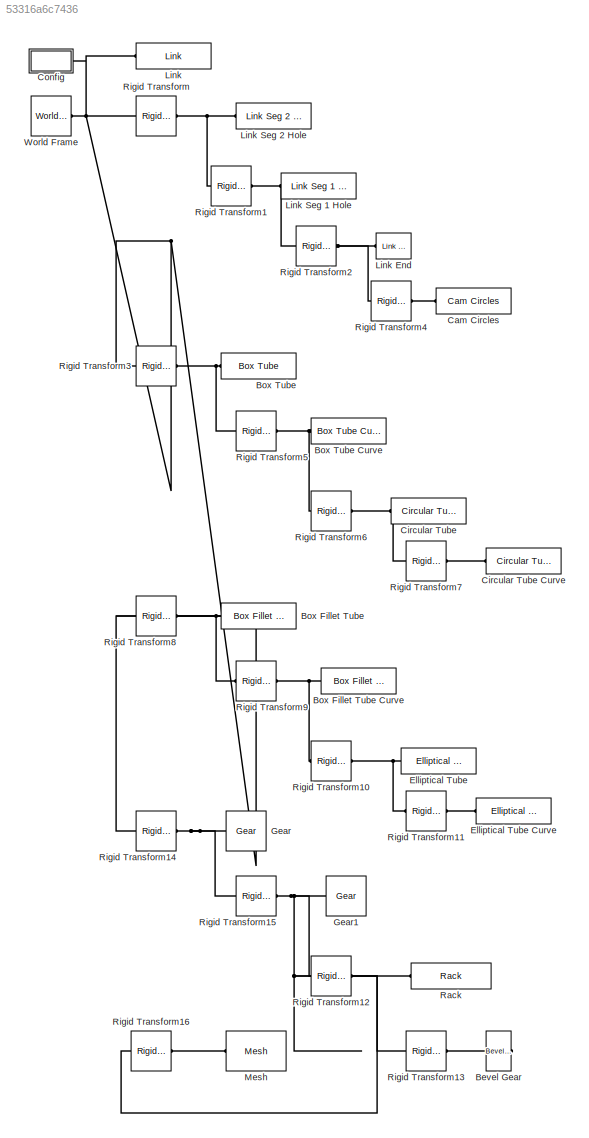
MODEL slx_53316a6c7436
KIND model
CONFIG AbsTol = auto
CONFIG EnableMultiTasking = on
CONFIG FixedStep = auto
CONFIG MaxStep = auto
CONFIG MinStep = auto
CONFIG RelTol = 1e-3
CONFIG SampleTimeConstraint = Unconstrained
CONFIG Solver = VariableStepAuto
CONFIG SolverName = VariableStepAuto
CONFIG StartTime = 0.0
CONFIG StopTime = 10.0
BLOCK [Reference] Bevel Gear  REF=Multibody_Parts_Lib/Gears/Bevel Gear
  Ports = [0, 0, 0, 0, 0, 0, 1]
  SourceBlock = Multibody_Parts_Lib/Gears/Bevel Gear
  SourceProductName = Simscape Multibody Parts Library
  SourceType = Bevel Gear
BLOCK [Reference] Box Fillet Tube  REF=Multibody_Parts_Lib/Extrusions/Box Fillet Tube
  Ports = [0, 0, 0, 0, 0, 1, 1]
  SourceBlock = Multibody_Parts_Lib/Extrusions/Box Fillet Tube
  SourceProductName = Simscape Multibody Parts Library
  SourceType = Box Tube with Filleted Corners
BLOCK [Reference] Box Fillet Tube Curve  REF=Multibody_Parts_Lib/Extrusions/Box Fillet Tube Curve
  Ports = [0, 0, 0, 0, 0, 1, 1]
  SourceBlock = Multibody_Parts_Lib/Extrusions/Box Fillet Tube Curve
  SourceProductName = Simscape Multibody Parts Library
  SourceType = Box Tube with Curve
BLOCK [Reference] Box Tube  REF=Multibody_Parts_Lib/Extrusions/Box Tube
  Ports = [0, 0, 0, 0, 0, 1, 1]
  SourceBlock = Multibody_Parts_Lib/Extrusions/Box Tube
  SourceProductName = Simscape Multibody Parts Library
  SourceType = Box Tube
BLOCK [Reference] Box Tube Curve  REF=Multibody_Parts_Lib/Extrusions/Box Tube Curve
  Ports = [0, 0, 0, 0, 0, 1, 1]
  SourceBlock = Multibody_Parts_Lib/Extrusions/Box Tube Curve
  SourceProductName = Simscape Multibody Parts Library
  SourceType = Box Tube with Curve
BLOCK [Reference] Cam Circles  REF=Multibody_Parts_Lib/Linkages/Cam Circles
  Ports = [0, 0, 0, 0, 0, 1, 1]
  SourceBlock = Multibody_Parts_Lib/Linkages/Cam Circles
  SourceProductName = Simscape Multibody Parts Library
  SourceType = Cam from Two Circles
BLOCK [Reference] Circular Tube  REF=Multibody_Parts_Lib/Extrusions/Circular Tube
  Ports = [0, 0, 0, 0, 0, 1, 1]
  SourceBlock = Multibody_Parts_Lib/Extrusions/Circular Tube
  SourceProductName = Simscape Multibody Parts Library
  SourceType = Elliptical Tube
BLOCK [Reference] Circular Tube Curve  REF=Multibody_Parts_Lib/Extrusions/Circular Tube Curve
  Ports = [0, 0, 0, 0, 0, 1, 1]
  SourceBlock = Multibody_Parts_Lib/Extrusions/Circular Tube Curve
  SourceProductName = Simscape Multibody Parts Library
  SourceType = Curved Circular Tube
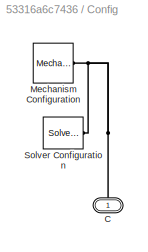
BLOCK [SubSystem] Config
  Ports = [0, 0, 0, 0, 0, 1]
  RequestExecContextInheritance = off
BLOCK [PMIOPort] Config/C
  Side = Left
BLOCK [Reference] Config/Mechanism Configuration  REF=sm_lib/Utilities/Mechanism
Configuration
  Ports = [0, 0, 0, 0, 0, 0, 1]
  SourceBlock = sm_lib/Utilities/Mechanism\nConfiguration
  SourceProductBaseCode = MS
  SourceProductName = Simscape Multibody
  SourceType = Mechanism\nConfiguration
BLOCK [Reference] Config/Solver Configuration  REF=nesl_utility/Solver
Configuration
  Ports = [0, 0, 0, 0, 0, 0, 1]
  SourceBlock = nesl_utility/Solver\nConfiguration
  SourceProductBaseCode = SS
  SourceProductName = Simscape
  SourceType = Solver\nConfiguration
BLOCK [Reference] Elliptical Tube  REF=Multibody_Parts_Lib/Extrusions/Elliptical Tube
  Ports = [0, 0, 0, 0, 0, 1, 1]
  SourceBlock = Multibody_Parts_Lib/Extrusions/Elliptical Tube
  SourceProductName = Simscape Multibody Parts Library
  SourceType = Elliptical Tube
BLOCK [Reference] Elliptical Tube Curve  REF=Multibody_Parts_Lib/Extrusions/Elliptical Tube Curve
  Ports = [0, 0, 0, 0, 0, 1, 1]
  SourceBlock = Multibody_Parts_Lib/Extrusions/Elliptical Tube Curve
  SourceProductName = Simscape Multibody Parts Library
  SourceType = Elliptical Tube
BLOCK [Reference] Gear  REF=Multibody_Parts_Lib/Gears/Gear
  Ports = [0, 0, 0, 0, 0, 0, 1]
  SourceBlock = Multibody_Parts_Lib/Gears/Gear
  SourceProductName = Simscape Multibody Parts Library
  SourceType = Gear
BLOCK [Reference] Gear1  REF=Multibody_Parts_Lib/Gears/Gear
  Ports = [0, 0, 0, 0, 0, 0, 1]
  SourceBlock = Multibody_Parts_Lib/Gears/Gear
  SourceProductName = Simscape Multibody Parts Library
  SourceType = Gear
BLOCK [Reference] Link  REF=Multibody_Parts_Lib/Linkages/Link
  Ports = [0, 0, 0, 0, 0, 1, 1]
  SourceBlock = Multibody_Parts_Lib/Linkages/Link
  SourceProductName = Simscape Multibody Parts Library
  SourceType = Link with Rounded Ends
BLOCK [Reference] Link End  REF=Multibody_Parts_Lib/Linkages/Link End
  Ports = [0, 0, 0, 0, 0, 1]
  SourceBlock = Multibody_Parts_Lib/Linkages/Link End
  SourceProductName = Simscape Multibody Parts Library
  SourceType = Link End
BLOCK [Reference] Link Seg 1 Hole  REF=Multibody_Parts_Lib/Linkages/Link Seg 1 Hole
  Ports = [0, 0, 0, 0, 0, 1, 1]
  SourceBlock = Multibody_Parts_Lib/Linkages/Link Seg 1 Hole
  SourceProductName = Simscape Multibody Parts Library
  SourceType = Link Segment with 1 Hole
BLOCK [Reference] Link Seg 2 Hole  REF=Multibody_Parts_Lib/Linkages/Link Seg 2 Hole
  Ports = [0, 0, 0, 0, 0, 1, 1]
  SourceBlock = Multibody_Parts_Lib/Linkages/Link Seg 2 Hole
  SourceProductName = Simscape Multibody Parts Library
  SourceType = Link Segment with 2 Holes
BLOCK [Reference] Mesh  REF=Multibody_Parts_Lib/Basic/Mesh
  Ports = [0, 0, 0, 0, 0, 1, 2]
  SourceBlock = Multibody_Parts_Lib/Basic/Mesh
  SourceProductName = Simscape Multibody Parts Library
  SourceType = Rectangular Mesh
BLOCK [Reference] Rack  REF=Multibody_Parts_Lib/Gears/Rack
  Ports = [0, 0, 0, 0, 0, 0, 1]
  SourceBlock = Multibody_Parts_Lib/Gears/Rack
  SourceProductName = Simscape Multibody Parts Library
  SourceType = Rack
BLOCK [Reference] Rigid Transform  REF=sm_lib/Frames and
Transforms/Rigid
Transform
  Ports = [0, 0, 0, 0, 0, 1, 1]
  SourceBlock = sm_lib/Frames and\nTransforms/Rigid\nTransform
  SourceProductBaseCode = MS
  SourceProductName = Simscape Multibody
  SourceType = Rigid\nTransform
BLOCK [Reference] Rigid Transform1  REF=sm_lib/Frames and
Transforms/Rigid
Transform
  Ports = [0, 0, 0, 0, 0, 1, 1]
  SourceBlock = sm_lib/Frames and\nTransforms/Rigid\nTransform
  SourceProductBaseCode = MS
  SourceProductName = Simscape Multibody
  SourceType = Rigid\nTransform
BLOCK [Reference] Rigid Transform10  REF=sm_lib/Frames and
Transforms/Rigid
Transform
  Ports = [0, 0, 0, 0, 0, 1, 1]
  SourceBlock = sm_lib/Frames and\nTransforms/Rigid\nTransform
  SourceProductBaseCode = MS
  SourceProductName = Simscape Multibody
  SourceType = Rigid\nTransform
BLOCK [Reference] Rigid Transform11  REF=sm_lib/Frames and
Transforms/Rigid
Transform
  Ports = [0, 0, 0, 0, 0, 1, 1]
  SourceBlock = sm_lib/Frames and\nTransforms/Rigid\nTransform
  SourceProductBaseCode = MS
  SourceProductName = Simscape Multibody
  SourceType = Rigid\nTransform
BLOCK [Reference] Rigid Transform12  REF=sm_lib/Frames and
Transforms/Rigid
Transform
  Ports = [0, 0, 0, 0, 0, 1, 1]
  SourceBlock = sm_lib/Frames and\nTransforms/Rigid\nTransform
  SourceProductBaseCode = MS
  SourceProductName = Simscape Multibody
  SourceType = Rigid\nTransform
BLOCK [Reference] Rigid Transform13  REF=sm_lib/Frames and
Transforms/Rigid
Transform
  Ports = [0, 0, 0, 0, 0, 1, 1]
  SourceBlock = sm_lib/Frames and\nTransforms/Rigid\nTransform
  SourceProductBaseCode = MS
  SourceProductName = Simscape Multibody
  SourceType = Rigid\nTransform
BLOCK [Reference] Rigid Transform14  REF=sm_lib/Frames and
Transforms/Rigid
Transform
  Ports = [0, 0, 0, 0, 0, 1, 1]
  SourceBlock = sm_lib/Frames and\nTransforms/Rigid\nTransform
  SourceProductBaseCode = MS
  SourceProductName = Simscape Multibody
  SourceType = Rigid\nTransform
BLOCK [Reference] Rigid Transform15  REF=sm_lib/Frames and
Transforms/Rigid
Transform
  Ports = [0, 0, 0, 0, 0, 1, 1]
  SourceBlock = sm_lib/Frames and\nTransforms/Rigid\nTransform
  SourceProductBaseCode = MS
  SourceProductName = Simscape Multibody
  SourceType = Rigid\nTransform
BLOCK [Reference] Rigid Transform16  REF=sm_lib/Frames and
Transforms/Rigid
Transform
  Ports = [0, 0, 0, 0, 0, 1, 1]
  SourceBlock = sm_lib/Frames and\nTransforms/Rigid\nTransform
  SourceProductBaseCode = MS
  SourceProductName = Simscape Multibody
  SourceType = Rigid\nTransform
BLOCK [Reference] Rigid Transform2  REF=sm_lib/Frames and
Transforms/Rigid
Transform
  Ports = [0, 0, 0, 0, 0, 1, 1]
  SourceBlock = sm_lib/Frames and\nTransforms/Rigid\nTransform
  SourceProductBaseCode = MS
  SourceProductName = Simscape Multibody
  SourceType = Rigid\nTransform
BLOCK [Reference] Rigid Transform3  REF=sm_lib/Frames and
Transforms/Rigid
Transform
  Ports = [0, 0, 0, 0, 0, 1, 1]
  SourceBlock = sm_lib/Frames and\nTransforms/Rigid\nTransform
  SourceProductBaseCode = MS
  SourceProductName = Simscape Multibody
  SourceType = Rigid\nTransform
BLOCK [Reference] Rigid Transform4  REF=sm_lib/Frames and
Transforms/Rigid
Transform
  Ports = [0, 0, 0, 0, 0, 1, 1]
  SourceBlock = sm_lib/Frames and\nTransforms/Rigid\nTransform
  SourceProductBaseCode = MS
  SourceProductName = Simscape Multibody
  SourceType = Rigid\nTransform
BLOCK [Reference] Rigid Transform5  REF=sm_lib/Frames and
Transforms/Rigid
Transform
  Ports = [0, 0, 0, 0, 0, 1, 1]
  SourceBlock = sm_lib/Frames and\nTransforms/Rigid\nTransform
  SourceProductBaseCode = MS
  SourceProductName = Simscape Multibody
  SourceType = Rigid\nTransform
BLOCK [Reference] Rigid Transform6  REF=sm_lib/Frames and
Transforms/Rigid
Transform
  Ports = [0, 0, 0, 0, 0, 1, 1]
  SourceBlock = sm_lib/Frames and\nTransforms/Rigid\nTransform
  SourceProductBaseCode = MS
  SourceProductName = Simscape Multibody
  SourceType = Rigid\nTransform
BLOCK [Reference] Rigid Transform7  REF=sm_lib/Frames and
Transforms/Rigid
Transform
  Ports = [0, 0, 0, 0, 0, 1, 1]
  SourceBlock = sm_lib/Frames and\nTransforms/Rigid\nTransform
  SourceProductBaseCode = MS
  SourceProductName = Simscape Multibody
  SourceType = Rigid\nTransform
BLOCK [Reference] Rigid Transform8  REF=sm_lib/Frames and
Transforms/Rigid
Transform
  Ports = [0, 0, 0, 0, 0, 1, 1]
  SourceBlock = sm_lib/Frames and\nTransforms/Rigid\nTransform
  SourceProductBaseCode = MS
  SourceProductName = Simscape Multibody
  SourceType = Rigid\nTransform
BLOCK [Reference] Rigid Transform9  REF=sm_lib/Frames and
Transforms/Rigid
Transform
  Ports = [0, 0, 0, 0, 0, 1, 1]
  SourceBlock = sm_lib/Frames and\nTransforms/Rigid\nTransform
  SourceProductBaseCode = MS
  SourceProductName = Simscape Multibody
  SourceType = Rigid\nTransform
BLOCK [Reference] World Frame  REF=sm_lib/Frames and
Transforms/World Frame
  Ports = [0, 0, 0, 0, 0, 0, 1]
  SourceBlock = sm_lib/Frames and\nTransforms/World Frame
  SourceProductBaseCode = MS
  SourceProductName = Simscape Multibody
  SourceType = World Frame
PLINE Bevel Gear:RConn1 -- Rigid Transform13:RConn1
PNET net1: Box Fillet Tube Curve:LConn1 -- Rigid Transform10:LConn1 -- Rigid Transform9:RConn1
PNET net2: Box Fillet Tube:LConn1 -- Rigid Transform8:RConn1 -- Rigid Transform9:LConn1
PNET net3: Box Tube Curve:LConn1 -- Rigid Transform5:RConn1 -- Rigid Transform6:LConn1
PNET net4: Box Tube:LConn1 -- Rigid Transform3:RConn1 -- Rigid Transform5:LConn1
PLINE Cam Circles:LConn1 -- Rigid Transform4:RConn1
PLINE Circular Tube Curve:LConn1 -- Rigid Transform7:RConn1
PNET net5: Circular Tube:LConn1 -- Rigid Transform6:RConn1 -- Rigid Transform7:LConn1
PNET net6: Config/C:RConn1 -- Config/Mechanism Configuration:RConn1 -- Config/Solver Configuration:RConn1
PNET net7: Config:LConn1 -- Link:LConn1 -- Rigid Transform14:LConn1 -- Rigid Transform3:LConn1 -- Rigid Transform8:LConn1 -- Rigid Transform:LConn1 -- World Frame:RConn1
PLINE Elliptical Tube Curve:LConn1 -- Rigid Transform11:RConn1
PNET net8: Elliptical Tube:LConn1 -- Rigid Transform10:RConn1 -- Rigid Transform11:LConn1
PNET net9: Gear1:RConn1 -- Rigid Transform12:LConn1 -- Rigid Transform13:LConn1 -- Rigid Transform15:RConn1 -- Rigid Transform16:LConn1
PNET net10: Gear:RConn1 -- Rigid Transform14:RConn1 -- Rigid Transform15:LConn1
PNET net11: Link End:LConn1 -- Rigid Transform2:RConn1 -- Rigid Transform4:LConn1
PNET net12: Link Seg 1 Hole:LConn1 -- Rigid Transform1:RConn1 -- Rigid Transform2:LConn1
PNET net13: Link Seg 2 Hole:LConn1 -- Rigid Transform1:LConn1 -- Rigid Transform:RConn1
PLINE Mesh:LConn1 -- Rigid Transform16:RConn1
PLINE Rack:RConn1 -- Rigid Transform12:RConn1
note: PNET lines group multi-terminal physical nets as a canonical sorted terminal list (undirected conserving connections); 2-terminal nets keep the pairwise PLINE form
